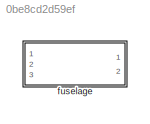
MODEL slx_0be8cd2d59ef
KIND library
CONFIG AbsTol = auto
CONFIG EnableMultiTasking = off
CONFIG FixedStep = auto
CONFIG MaxStep = auto
CONFIG MinStep = auto
CONFIG RelTol = 1e-3
CONFIG SampleTimeConstraint = Unconstrained
CONFIG Solver = VariableStepAuto
CONFIG SolverName = VariableStepAuto
CONFIG StartTime = 0.0
CONFIG StopTime = 10.0
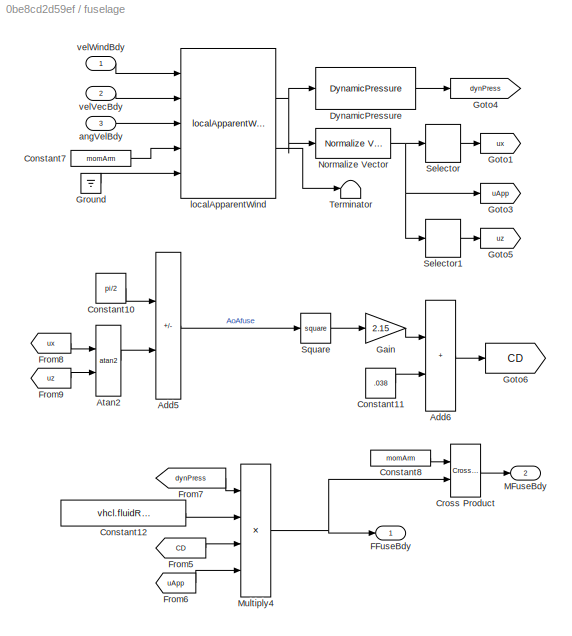
BLOCK [SubSystem] fuselage
  Ports = [3, 2]
  RequestExecContextInheritance = off
BLOCK [Sum] fuselage/Add5
  IconShape = rectangular
  Inputs = +-
  Ports = [2, 1]
BLOCK [Sum] fuselage/Add6
  IconShape = rectangular
  Ports = [2, 1]
BLOCK [Trigonometry] fuselage/Atan2
  Operator = atan2
  Ports = [2, 1]
BLOCK [Constant] fuselage/Constant10
  Value = pi/2
BLOCK [Constant] fuselage/Constant11
  Value = .038
BLOCK [Constant] fuselage/Constant12
  Value = vhcl.fluidRefArea.Value
BLOCK [Constant] fuselage/Constant7
  Value = momArm
BLOCK [Constant] fuselage/Constant8
  Value = momArm
BLOCK [Reference] fuselage/Cross Product  REF=vrlib/Utilities/Cross Product
  Ports = [2, 1]
  SourceBlock = vrlib/Utilities/Cross Product
  SourceProductBaseCode = SL
  SourceType = Cross Product
BLOCK [Reference] fuselage/DynamicPressure  REF=dynamicPressure_ul/DynamicPressure
  Ports = [1, 1]
  SourceBlock = dynamicPressure_ul/DynamicPressure
BLOCK [Outport] fuselage/FFuseBdy
  VectorParamsAs1DForOutWhenUnconnected = off
BLOCK [From] fuselage/From5
  GotoTag = CD
BLOCK [From] fuselage/From6
  GotoTag = uApp
BLOCK [From] fuselage/From7
  GotoTag = dynPress
BLOCK [From] fuselage/From8
  GotoTag = ux
BLOCK [From] fuselage/From9
  GotoTag = uz
BLOCK [Gain] fuselage/Gain
  Gain = 2.15
BLOCK [Goto] fuselage/Goto1
  GotoTag = ux
BLOCK [Goto] fuselage/Goto3
  GotoTag = uApp
BLOCK [Goto] fuselage/Goto4
  GotoTag = dynPress
BLOCK [Goto] fuselage/Goto5
  GotoTag = uz
BLOCK [Goto] fuselage/Goto6
  GotoTag = CD
BLOCK [Ground] fuselage/Ground
BLOCK [Outport] fuselage/MFuseBdy
  Port = 2
  VectorParamsAs1DForOutWhenUnconnected = off
BLOCK [Product] fuselage/Multiply4
  Inputs = 4
  Ports = [4, 1]
BLOCK [Reference] fuselage/Normalize Vector  REF=vrlib/Utilities/Normalize Vector
  Ports = [1, 1]
  SourceBlock = vrlib/Utilities/Normalize Vector
  SourceProductBaseCode = SL
  SourceType = Normalize Vector
BLOCK [Selector] fuselage/Selector
  IndexOptions = Index vector (dialog)
  Indices = 1
  InputPortWidth = 3
  OutputSizes = 1
  Ports = [1, 1]
BLOCK [Selector] fuselage/Selector1
  IndexOptions = Index vector (dialog)
  Indices = 3
  InputPortWidth = 3
  OutputSizes = 1
  Ports = [1, 1]
BLOCK [Math] fuselage/Square
  Operator = square
  Ports = [1, 1]
BLOCK [Terminator] fuselage/Terminator
BLOCK [Inport] fuselage/angVelBdy
  Port = 3
BLOCK [Reference] fuselage/localApparentWind  REF=localApparentWind_ul/localApparentWind
  Ports = [5, 2]
  SourceBlock = localApparentWind_ul/localApparentWind
  SourceType = SubSystem
BLOCK [Inport] fuselage/velVecBdy
  Port = 2
BLOCK [Inport] fuselage/velWindBdy
LINE fuselage/Add5:1 -> fuselage/Square:1
LINE fuselage/Add6:1 -> fuselage/Goto6:1
LINE fuselage/Atan2:1 -> fuselage/Add5:2
LINE fuselage/Constant10:1 -> fuselage/Add5:1
LINE fuselage/Constant11:1 -> fuselage/Add6:2
LINE fuselage/Constant12:1 -> fuselage/Multiply4:2
LINE fuselage/Constant7:1 -> fuselage/localApparentWind:4
LINE fuselage/Constant8:1 -> fuselage/Cross Product:1
LINE fuselage/Cross Product:1 -> fuselage/MFuseBdy:1
LINE fuselage/DynamicPressure:1 -> fuselage/Goto4:1
LINE fuselage/From5:1 -> fuselage/Multiply4:3
LINE fuselage/From6:1 -> fuselage/Multiply4:4
LINE fuselage/From7:1 -> fuselage/Multiply4:1
LINE fuselage/From8:1 -> fuselage/Atan2:1
LINE fuselage/From9:1 -> fuselage/Atan2:2
LINE fuselage/Gain:1 -> fuselage/Add6:1
LINE fuselage/Ground:1 -> fuselage/localApparentWind:5
NET fuselage/Multiply4:1 -> fuselage/Cross Product:2, fuselage/FFuseBdy:1
NET fuselage/Normalize Vector:1 -> fuselage/Goto3:1, fuselage/Selector1:1, fuselage/Selector:1
LINE fuselage/Selector1:1 -> fuselage/Goto5:1
LINE fuselage/Selector:1 -> fuselage/Goto1:1
LINE fuselage/Square:1 -> fuselage/Gain:1
LINE fuselage/angVelBdy:1 -> fuselage/localApparentWind:3
NET fuselage/localApparentWind:1 -> fuselage/DynamicPressure:1, fuselage/Normalize Vector:1
LINE fuselage/localApparentWind:2 -> fuselage/Terminator:1
LINE fuselage/velVecBdy:1 -> fuselage/localApparentWind:2
LINE fuselage/velWindBdy:1 -> fuselage/localApparentWind:1
note: NET lines group one-source signal fan-out (src -> all destinations, sorted); 1:1 wires keep LINE
